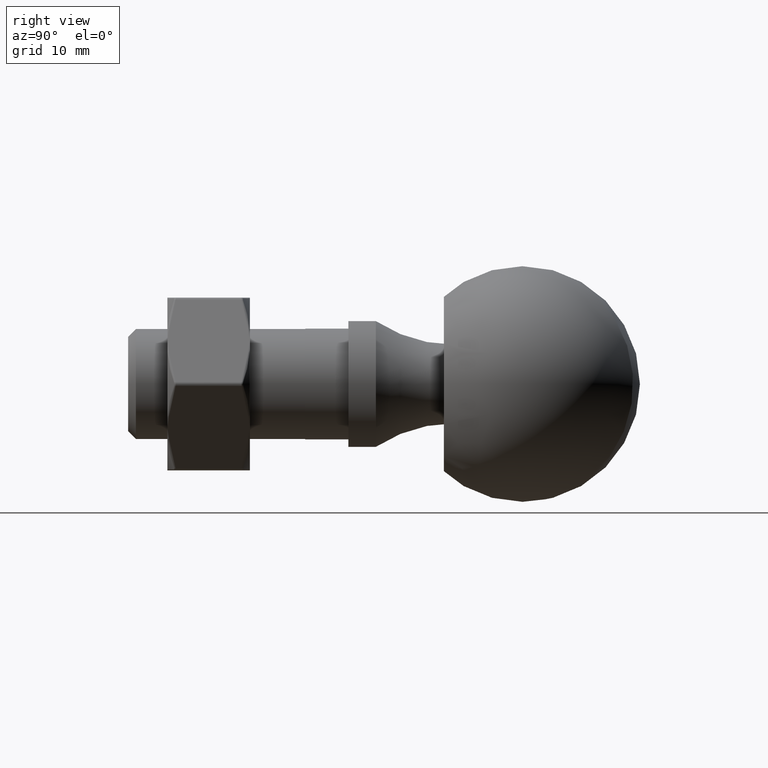
[diagram: clean part render]
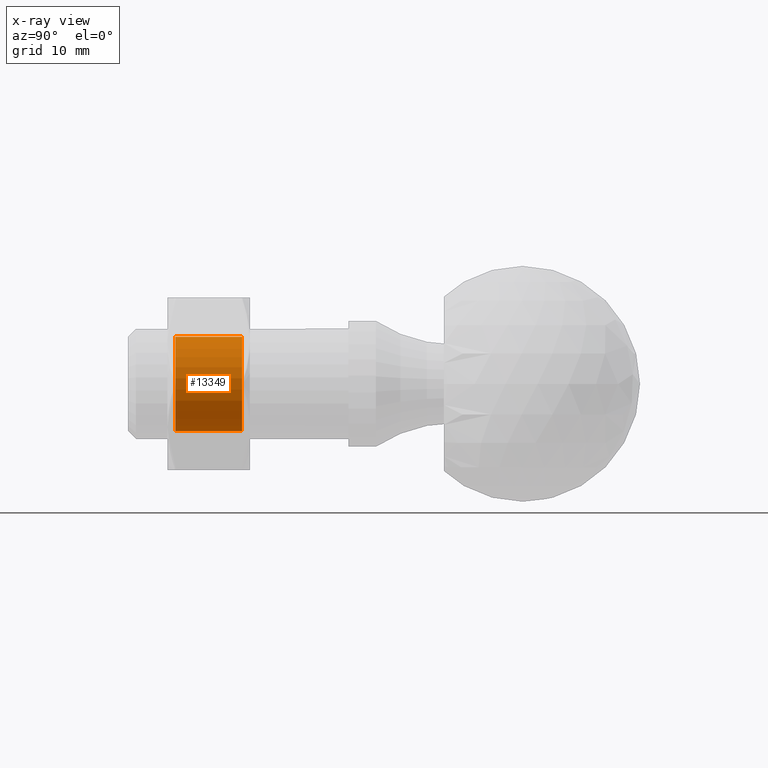
[diagram: x-ray — body ghosted, one internal face saturated and labeled with its STEP entity id]
A machine part, right view, then the same camera in x-ray: the body is ghosted and one INTERNAL B-rep face — a face not visible from any outside direction — is saturated and labeled: STEP entity #13349.
In plain terms, the highlighted cylindrical surface (bore or boss wall) has radius 6 mm, axis along (0, 1, 0).
Its self-contained STEP definition (entity closure, byte-faithful):
#571 = DIRECTION ( 'NONE',  ( 0.000000000000000000, 0.000000000000000000, 1.000000000000000000 ) ) ;
#765 = AXIS2_PLACEMENT_3D ( 'NONE', #12513, #11077, #571 ) ;
#867 = DIRECTION ( 'NONE',  ( 0.000000000000000000, 0.000000000000000000, 1.000000000000000000 ) ) ;
#1030 = CARTESIAN_POINT ( 'NONE',  ( 0.000000000000000000, -4.250000000000003553, 6.000000000000002665 ) ) ;
#2528 = CIRCLE ( 'NONE', #2646, 6.000000000000002665 ) ;
#2646 = AXIS2_PLACEMENT_3D ( 'NONE', #6263, #11240, #867 ) ;
#3937 = EDGE_LOOP ( 'NONE', ( #4426 ) ) ;
#4044 = CYLINDRICAL_SURFACE ( 'NONE', #14163, 6.000000000000002665 ) ;
#4426 = ORIENTED_EDGE ( 'NONE', *, *, #11278, .T. ) ;
#4522 = FACE_OUTER_BOUND ( 'NONE', #3937, .T. ) ;
#6263 = CARTESIAN_POINT ( 'NONE',  ( 0.000000000000000000, -4.250000000000003553, 0.000000000000000000 ) ) ;
#6483 = CIRCLE ( 'NONE', #765, 6.000000000000002665 ) ;
#6611 = DIRECTION ( 'NONE',  ( 0.000000000000000000, 1.000000000000000000, 0.000000000000000000 ) ) ;
#8681 = VERTEX_POINT ( 'NONE', #1030 ) ;
#10003 = FACE_OUTER_BOUND ( 'NONE', #17087, .T. ) ;
#11077 = DIRECTION ( 'NONE',  ( 0.000000000000000000, 1.000000000000000000, 0.000000000000000000 ) ) ;
#11189 = CARTESIAN_POINT ( 'NONE',  ( 0.000000000000000000, 5.250000000000004441, 0.000000000000000000 ) ) ;
#11240 = DIRECTION ( 'NONE',  ( -0.000000000000000000, -1.000000000000000000, -0.000000000000000000 ) ) ;
#11278 = EDGE_CURVE ( 'NONE', #17722, #17722, #6483, .T. ) ;
#12513 = CARTESIAN_POINT ( 'NONE',  ( 0.000000000000000000, 4.250000000000003553, 0.000000000000000000 ) ) ;
#13349 = ADVANCED_FACE ( 'NONE', ( #10003, #4522 ), #4044, .F. ) ;
#14163 = AXIS2_PLACEMENT_3D ( 'NONE', #11189, #6611, #18789 ) ;
#14592 = CARTESIAN_POINT ( 'NONE',  ( 0.000000000000000000, 4.250000000000003553, 6.000000000000002665 ) ) ;
#17087 = EDGE_LOOP ( 'NONE', ( #17537 ) ) ;
#17537 = ORIENTED_EDGE ( 'NONE', *, *, #18567, .T. ) ;
#17722 = VERTEX_POINT ( 'NONE', #14592 ) ;
#18567 = EDGE_CURVE ( 'NONE', #8681, #8681, #2528, .T. ) ;
#18789 = DIRECTION ( 'NONE',  ( 0.000000000000000000, 0.000000000000000000, 1.000000000000000000 ) ) ;